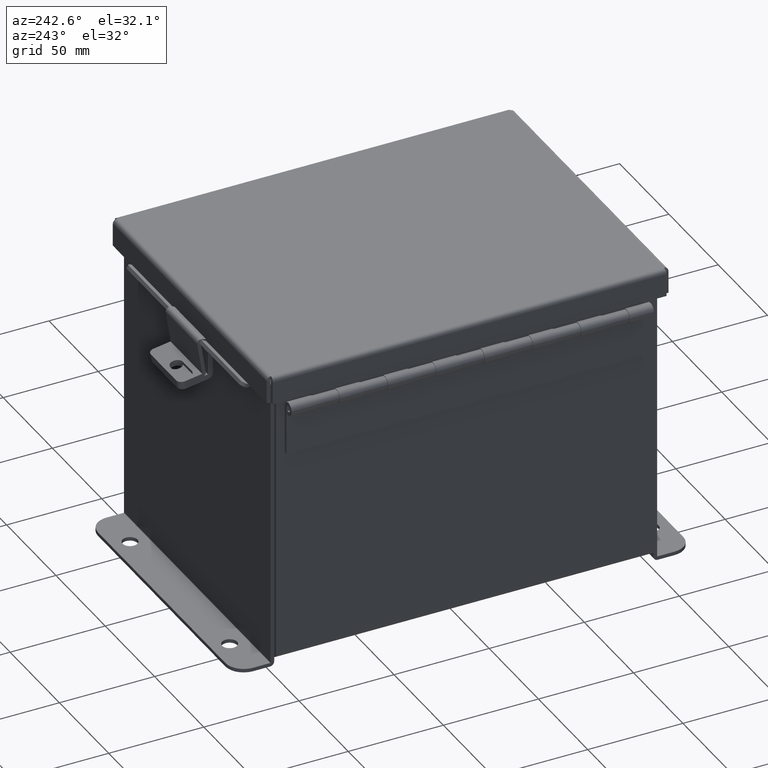
[diagram: clean part render]
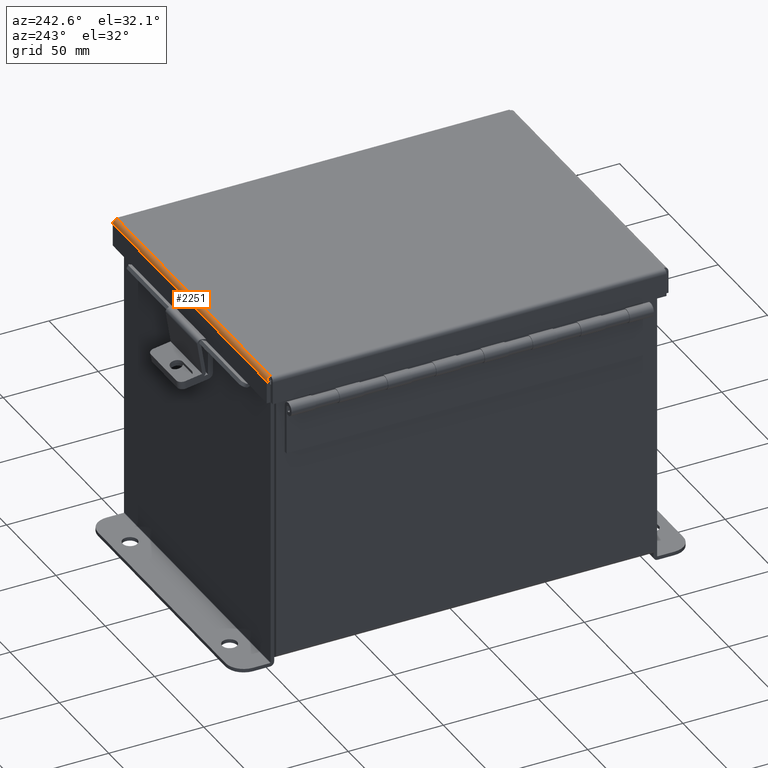
[diagram: same view with one face highlighted and labeled with its STEP entity id]
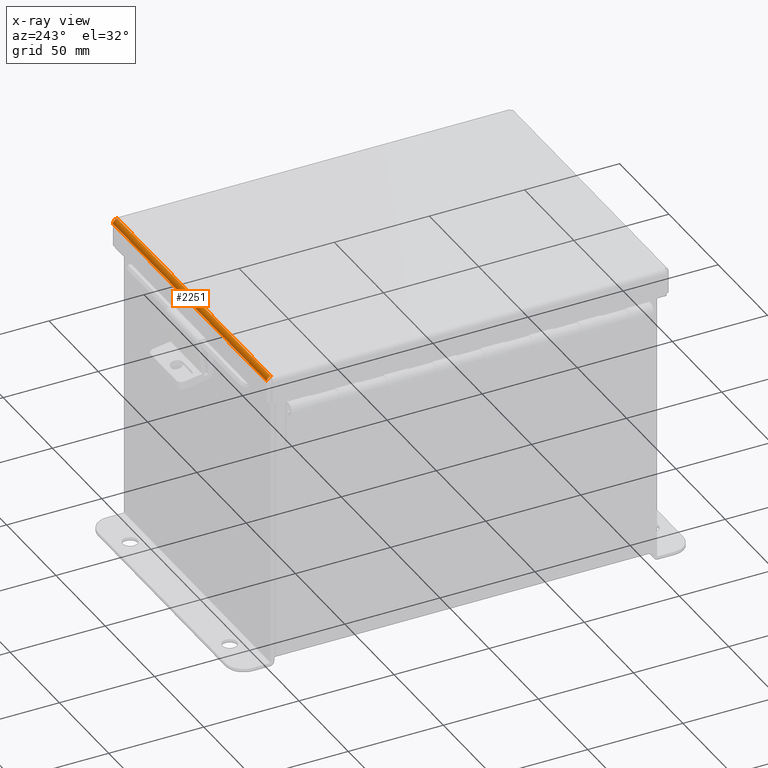
[diagram: x-ray of the same camera — body ghosted, the highlighted face saturated]
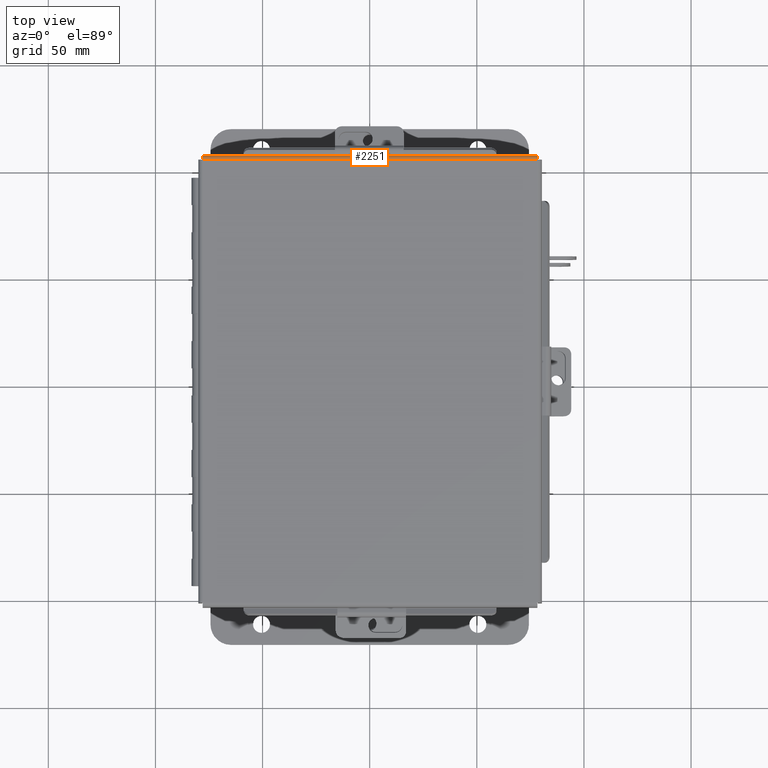
[diagram: same view with one face highlighted and labeled with its STEP entity id]
A machine part, auxiliary view. The second image highlights one B-rep face of the part: STEP entity #2251.
The next image is the same camera in x-ray: the body ghosted, the highlighted face saturated — about 0% of this face is hidden behind the body in this view.
A second angle (top view) of the same face is appended — the face is thin or edge-on in the first view.
In plain terms, the highlighted cylindrical surface (edge-blend (fillet) strip) has radius 2.2276 mm, axis along (1, -0, 0).
Its self-contained STEP definition (entity closure, byte-faithful):
#8 = VERTEX_POINT ( 'NONE', #118 ) ;
#118 = CARTESIAN_POINT ( 'NONE',  ( -3.068549999999999200, 4.068550000000001900, -0.07469999999999994700 ) ) ;
#870 = CARTESIAN_POINT ( 'NONE',  ( -3.074478932188133800, 4.156250000000001800, 0.01299999999999986400 ) ) ;
#1179 = DIRECTION ( 'NONE',  ( 1.000000000000000000, 0.0000000000000000000, 0.0000000000000000000 ) ) ;
#1948 = LINE ( 'NONE', #9143, #5093 ) ;
#1969 = CARTESIAN_POINT ( 'NONE',  ( 3.069538155364690100, 4.091505289458312200, -0.07241740374381124000 ) ) ;
#2059 = CARTESIAN_POINT ( 'NONE',  ( -3.073984854505788200, 4.156250000000001800, 0.001520096845007165000 ) ) ;
#2153 = VERTEX_POINT ( 'NONE', #11430 ) ;
#2160 = CARTESIAN_POINT ( 'NONE',  ( 3.068550000000001000, 4.068550000000001900, -0.07469999999999994700 ) ) ;
#2251 = ADVANCED_FACE ( 'NONE', ( #8595 ), #14506, .T. ) ;
#2912 = EDGE_LOOP ( 'NONE', ( #7399, #13856, #7800, #7819 ) ) ;
#3188 = CARTESIAN_POINT ( 'NONE',  ( 3.071020388411724400, 4.122445747341801700, -0.05713078207832042500 ) ) ;
#3268 = CARTESIAN_POINT ( 'NONE',  ( -3.072502621458755200, 4.145181066258669700, -0.03116738457852794700 ) ) ;
#3294 = DIRECTION ( 'NONE',  ( -1.000000000000000000, -0.0000000000000000000, -0.0000000000000000000 ) ) ;
#4359 = CARTESIAN_POINT ( 'NONE',  ( 3.072502621458758300, 4.145181066258670600, -0.03116738457852795100 ) ) ;
#4444 = CARTESIAN_POINT ( 'NONE',  ( -3.071020388411722200, 4.122445747341801700, -0.05713078207832041800 ) ) ;
#4564 = B_SPLINE_CURVE_WITH_KNOTS ( 'NONE', 3,
 ( #14963, #6590, #1969, #10275, #3188, #11464, #4359, #12662, #5566, #13834 ),
 .UNSPECIFIED., .F., .F.,
 ( 4, 2, 2, 2, 4 ),
 ( 0.0000000000000000000, 0.2500000000000000000, 0.5000000000000000000, 0.7500000000000000000, 1.000000000000000000 ),
 .UNSPECIFIED. ) ;
#5093 = VECTOR ( 'NONE', #5561, 39.37007874015748100 ) ;
#5561 = DIRECTION ( 'NONE',  ( 1.000000000000000000, -3.639204975723964700E-032, 1.189815042988946700E-046 ) ) ;
#5566 = CARTESIAN_POINT ( 'NONE',  ( 3.073984854505792200, 4.156250000000001800, 0.001520096845007165400 ) ) ;
#5655 = CARTESIAN_POINT ( 'NONE',  ( -3.069538155364688800, 4.091505289458310400, -0.07241740374381125400 ) ) ;
#6235 = AXIS2_PLACEMENT_3D ( 'NONE', #11596, #3294, #12774 ) ;
#6556 = VECTOR ( 'NONE', #1179, 39.37007874015748100 ) ;
#6590 = CARTESIAN_POINT ( 'NONE',  ( 3.069044077682345300, 4.080029903154994000, -0.07469999999999994700 ) ) ;
#6828 = CARTESIAN_POINT ( 'NONE',  ( -3.068549999999999200, 4.068550000000001900, -0.07469999999999994700 ) ) ;
#7092 = CARTESIAN_POINT ( 'NONE',  ( -3.074478932188133800, 4.068550000000001900, -0.07469999999999994700 ) ) ;
#7399 = ORIENTED_EDGE ( 'NONE', *, *, #13031, .F. ) ;
#7800 = ORIENTED_EDGE ( 'NONE', *, *, #12172, .T. ) ;
#7819 = ORIENTED_EDGE ( 'NONE', *, *, #14797, .F. ) ;
#8168 = VERTEX_POINT ( 'NONE', #9561 ) ;
#8595 = FACE_OUTER_BOUND ( 'NONE', #2912, .T. ) ;
#9143 = CARTESIAN_POINT ( 'NONE',  ( 3.156250000000000000, 4.156250000000001800, 0.01299999999999986400 ) ) ;
#9561 = CARTESIAN_POINT ( 'NONE',  ( -3.074478932188133800, 4.156250000000001800, 0.01299999999999986400 ) ) ;
#10060 = B_SPLINE_CURVE_WITH_KNOTS ( 'NONE', 3,
 ( #870, #2059, #10351, #3268, #11564, #4444, #12743, #5655, #13925, #6828 ),
 .UNSPECIFIED., .F., .F.,
 ( 4, 2, 2, 2, 4 ),
 ( 0.0000000000000000000, 0.2500000000000000000, 0.5000000000000000000, 0.7500000000000000000, 1.000000000000000000 ),
 .UNSPECIFIED. ) ;
#10275 = CARTESIAN_POINT ( 'NONE',  ( 3.070526310729380500, 4.112717384578529000, -0.06363106625866839200 ) ) ;
#10351 = CARTESIAN_POINT ( 'NONE',  ( -3.073490776823444300, 4.153967403743814100, -0.009955289458308987100 ) ) ;
#11430 = CARTESIAN_POINT ( 'NONE',  ( 3.074478932188136100, 4.156250000000001800, 0.01299999999999985900 ) ) ;
#11464 = CARTESIAN_POINT ( 'NONE',  ( 3.072008543776413500, 4.138680782078322900, -0.04089574734180008400 ) ) ;
#11564 = CARTESIAN_POINT ( 'NONE',  ( -3.072008543776410900, 4.138680782078321100, -0.04089574734180007700 ) ) ;
#11596 = CARTESIAN_POINT ( 'NONE',  ( -3.074478932188133800, 4.068550000000001900, 0.01300000000000015000 ) ) ;
#12172 = EDGE_CURVE ( 'NONE', #8168, #2153, #1948, .T. ) ;
#12662 = CARTESIAN_POINT ( 'NONE',  ( 3.073490776823447800, 4.153967403743813200, -0.009955289458308985400 ) ) ;
#12743 = CARTESIAN_POINT ( 'NONE',  ( -3.070526310729377400, 4.112717384578529000, -0.06363106625866842000 ) ) ;
#12774 = DIRECTION ( 'NONE',  ( 0.0000000000000000000, 1.000000000000000000, -3.358350761880586900E-015 ) ) ;
#12853 = EDGE_CURVE ( 'NONE', #8168, #8, #10060, .T. ) ;
#12885 = VERTEX_POINT ( 'NONE', #2160 ) ;
#13031 = EDGE_CURVE ( 'NONE', #8, #12885, #13225, .T. ) ;
#13225 = LINE ( 'NONE', #7092, #6556 ) ;
#13834 = CARTESIAN_POINT ( 'NONE',  ( 3.074478932188136100, 4.156250000000001800, 0.01299999999999985900 ) ) ;
#13856 = ORIENTED_EDGE ( 'NONE', *, *, #12853, .F. ) ;
#13925 = CARTESIAN_POINT ( 'NONE',  ( -3.069044077682344000, 4.080029903154994000, -0.07469999999999994700 ) ) ;
#14506 = CYLINDRICAL_SURFACE ( 'NONE', #6235, 0.08770000000000026400 ) ;
#14797 = EDGE_CURVE ( 'NONE', #12885, #2153, #4564, .T. ) ;
#14963 = CARTESIAN_POINT ( 'NONE',  ( 3.068550000000001000, 4.068550000000001900, -0.07469999999999994700 ) ) ;